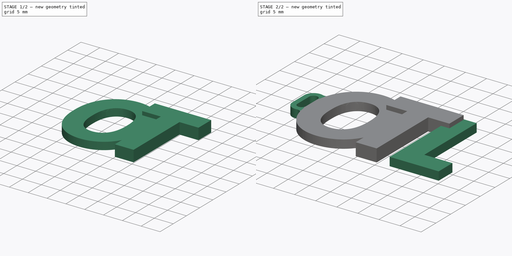
[diagram: build sequence overview — one tinted view per stage of 2, left to right]
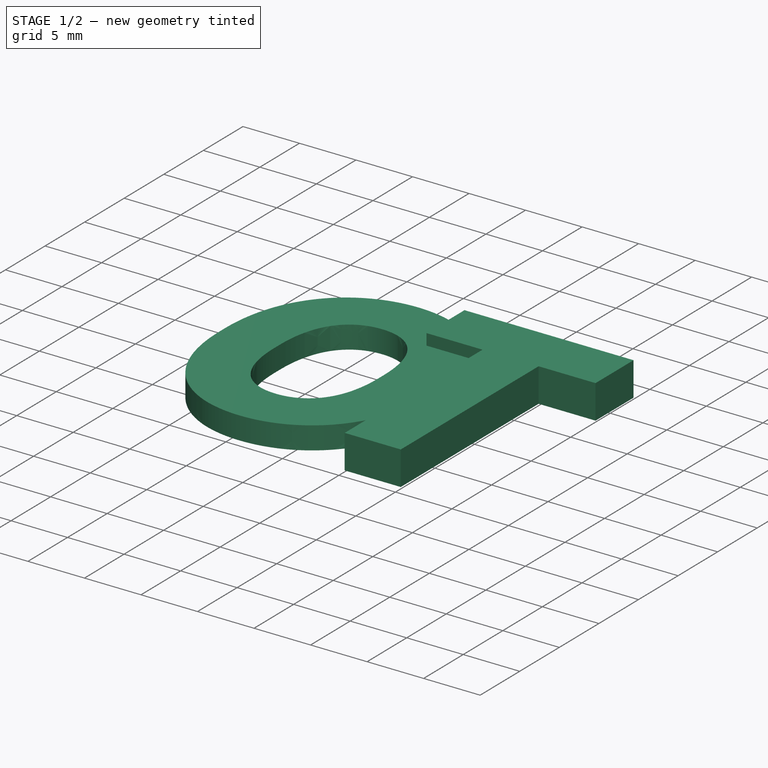
[diagram: stage 1 of 2 — iso view after this stage's code; geometry added in this stage tinted green]
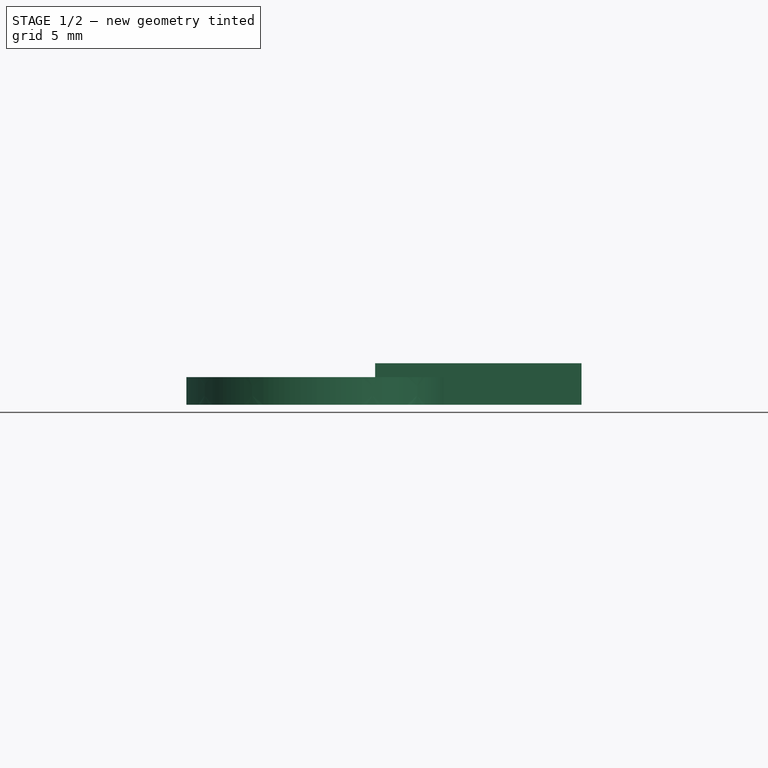
[diagram: stage 1 of 2 — front view after this stage's code; geometry added in this stage tinted green]
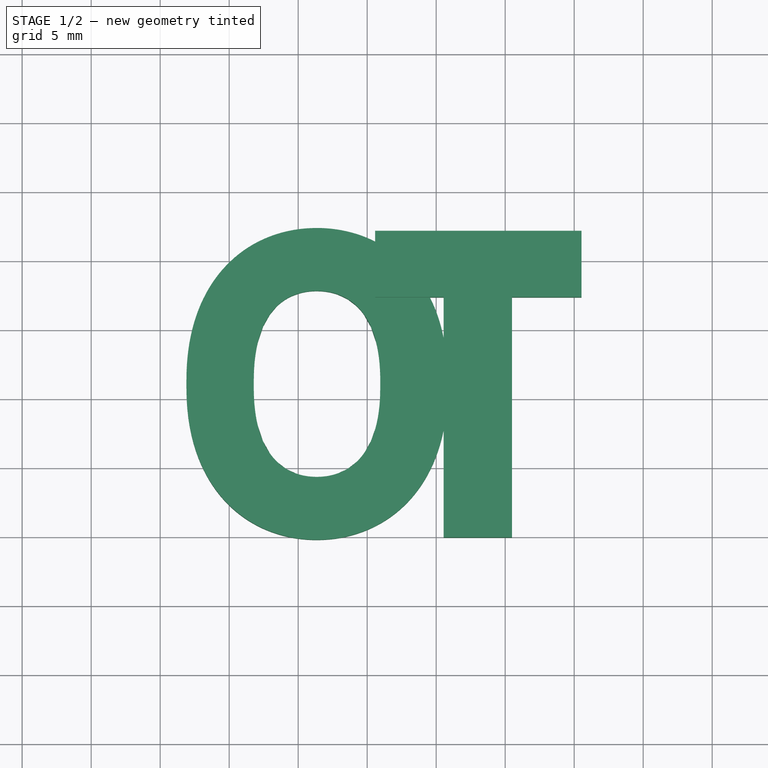
[diagram: stage 1 of 2 — top view after this stage's code; geometry added in this stage tinted green]
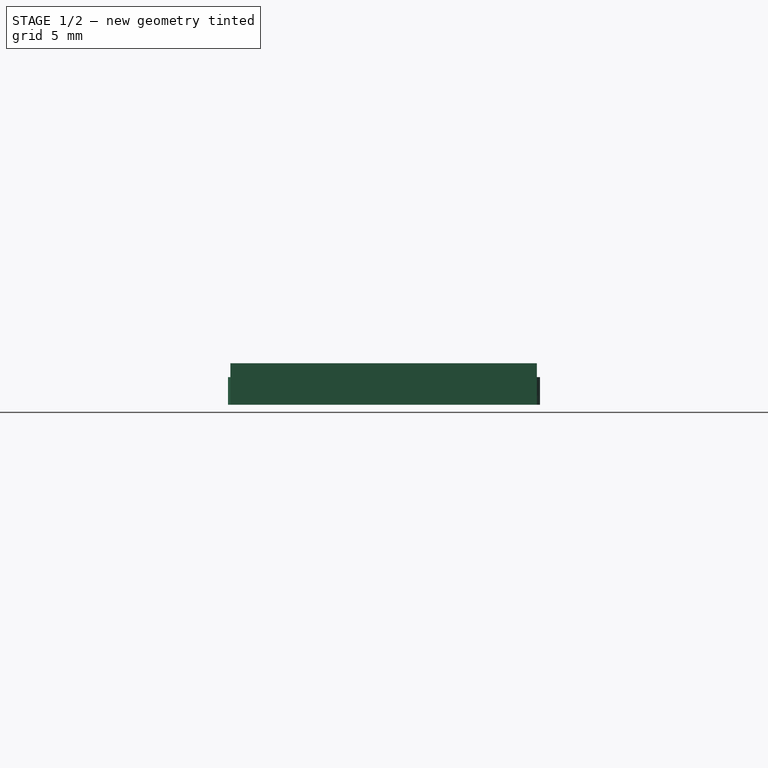
[diagram: stage 1 of 2 — right view after this stage's code; geometry added in this stage tinted green]
FCSTD DOCUMENT  (FreeCAD 0.21R33771 (Git))
Label: OTL
License: All rights reserved
LicenseURL: http://en.wikipedia.org/wiki/All_rights_reserved
objects: Sketcher::SketchObject×6, PartDesign::Pad×4, Part::Part2DObjectPython×1, PartDesign::Body×1
note: 16 computed .brp shape members not serialized (recipe doc carries the construction recipe); baked Part::Feature solids carry a one-line shape summary decoded from their .brp

FEATURE [Sketcher::SketchObject] Sketch
  FullyConstrained = false
  MapMode = 5
  Support = -> [XY_Plane]
  sketch-geometry (4):
    g0: LineSegment StartX=0 StartY=0 StartZ=0 EndX=45.6363 EndY=0 EndZ=0
    g1: LineSegment StartX=45.6363 StartY=0 StartZ=0 EndX=45.6363 EndY=22.6286 EndZ=0
    g2: LineSegment StartX=45.6363 StartY=22.6286 StartZ=0 EndX=0 EndY=22.6286 EndZ=0
    g3: LineSegment StartX=0 StartY=22.6286 StartZ=0 EndX=0 EndY=0 EndZ=0
  constraints (9):
    c: Coincident(g0,g1)
    c: Coincident(g1,g2)
    c: Coincident(g2,g3)
    c: Coincident(g3,g0)
    c: Horizontal(g0)
    c: Horizontal(g2)
    c: Vertical(g1)
    c: Vertical(g3)
    c: Coincident(g0,g-1)
FEATURE [Part::Part2DObjectPython] ShapeString  # Draft 2D object (typed FeaturePython)
  FontFile = <userpath>/Downloads/affogato/AffogatoBold.otf
  MakeFace = true
  Size = 12
  String = OTL
  Tracking = 0
FEATURE [Sketcher::SketchObject] Sketch001  label="o"
  FullyConstrained = false
  sketch-geometry (12):
    g0: BSplineCurve PolesCount=4 KnotsCount=2 Degree=3 IsPeriodic=0
    g1: LineSegment StartX=20.8261 StartY=10.783 StartZ=0 EndX=20.8261 EndY=11.417 EndZ=0
    g2: BSplineCurve PolesCount=4 KnotsCount=2 Degree=3 IsPeriodic=0
    g3: BSplineCurve PolesCount=4 KnotsCount=2 Degree=3 IsPeriodic=0
    g4: LineSegment StartX=1.90341 StartY=11.417 StartZ=0 EndX=1.90341 EndY=10.783 EndZ=0
    g5: BSplineCurve PolesCount=4 KnotsCount=2 Degree=3 IsPeriodic=0
    g6: BSplineCurve PolesCount=4 KnotsCount=2 Degree=3 IsPeriodic=0
    g7: LineSegment StartX=6.78295 StartY=10.783 StartZ=0 EndX=6.78295 EndY=11.417 EndZ=0
    g8: BSplineCurve PolesCount=4 KnotsCount=2 Degree=3 IsPeriodic=0
    g9: BSplineCurve PolesCount=4 KnotsCount=2 Degree=3 IsPeriodic=0
    g10: LineSegment StartX=15.9466 StartY=11.417 StartZ=0 EndX=15.9466 EndY=10.783 EndZ=0
    g11: BSplineCurve PolesCount=4 KnotsCount=2 Degree=3 IsPeriodic=0
  constraints (16):
    c: Coincident(g0,g1)
    c: Vertical(g1)
    c: Coincident(g1,g2)
    c: Coincident(g2,g3)
    c: Coincident(g3,g4)
    c: Vertical(g4)
    c: Coincident(g4,g5)
    c: Coincident(g5,g0)
    c: Coincident(g6,g7)
    c: Vertical(g7)
    c: Coincident(g7,g8)
    c: Coincident(g8,g9)
    c: Coincident(g9,g10)
    c: Vertical(g10)
    c: Coincident(g10,g11)
    c: Coincident(g11,g6)
FEATURE [Sketcher::SketchObject] Sketch002
  ExternalGeometry = -> [Sketch001]
  FullyConstrained = true
  MapMode = 2
  Support = -> [Sketch001]
FEATURE [Sketcher::SketchObject] Sketch003  label="t"
  FullyConstrained = false
  Placement = pos=(-7.7,0,0) rot=(0,0,1;0rad)
  sketch-geometry (8):
    g0: LineSegment StartX=38.2341 StartY=22.1818 StartZ=0 EndX=23.2784 EndY=22.1818 EndZ=0
    g1: LineSegment StartX=23.2784 StartY=22.1818 StartZ=0 EndX=23.2784 EndY=17.3818 EndZ=0
    g2: LineSegment StartX=23.2784 StartY=17.3818 StartZ=0 EndX=28.2375 EndY=17.3818 EndZ=0
    g3: LineSegment StartX=28.2375 StartY=17.3818 StartZ=0 EndX=28.2375 EndY=-0.0340909 EndZ=0
    g4: LineSegment StartX=28.2375 StartY=-0.0340909 StartZ=0 EndX=33.1966 EndY=-0.0340909 EndZ=0
    g5: LineSegment StartX=33.1966 StartY=-0.0340909 StartZ=0 EndX=33.1966 EndY=17.3818 EndZ=0
    g6: LineSegment StartX=33.1966 StartY=17.3818 StartZ=0 EndX=38.2341 EndY=17.3818 EndZ=0
    g7: LineSegment StartX=38.2341 StartY=17.3818 StartZ=0 EndX=38.2341 EndY=22.1818 EndZ=0
  constraints (16):
    c: Horizontal(g0)
    c: Coincident(g0,g1)
    c: Vertical(g1)
    c: Coincident(g1,g2)
    c: Horizontal(g2)
    c: Coincident(g2,g3)
    c: Vertical(g3)
    c: Coincident(g3,g4)
    c: Horizontal(g4)
    c: Coincident(g4,g5)
    c: Vertical(g5)
    c: Coincident(g5,g6)
    c: Horizontal(g6)
    c: Coincident(g6,g7)
    c: Vertical(g7)
    c: Coincident(g7,g0)
FEATURE [Sketcher::SketchObject] Sketch004  label="l"
  FullyConstrained = false
  Placement = pos=(-13,0,0) rot=(0,0,1;0rad)
  sketch-geometry (6):
    g0: LineSegment StartX=46.4989 StartY=4.64091 StartZ=0 EndX=46.4989 EndY=22.3727 EndZ=0
    g1: LineSegment StartX=46.4989 StartY=22.3727 StartZ=0 EndX=41.5398 EndY=22.3727 EndZ=0
    g2: LineSegment StartX=41.5398 StartY=22.3727 StartZ=0 EndX=41.5398 EndY=0 EndZ=0
    g3: LineSegment StartX=41.5398 StartY=0 StartZ=0 EndX=53.1636 EndY=0 EndZ=0
    g4: LineSegment StartX=53.1636 StartY=0 StartZ=0 EndX=53.1636 EndY=4.64091 EndZ=0
    g5: LineSegment StartX=53.1636 StartY=4.64091 StartZ=0 EndX=46.4989 EndY=4.64091 EndZ=0
  constraints (12):
    c: Vertical(g0)
    c: Coincident(g0,g1)
    c: Coincident(g1,g2)
    c: Vertical(g2)
    c: Coincident(g2,g3)
    c: Horizontal(g3)
    c: Coincident(g3,g4)
    c: Vertical(g4)
    c: Coincident(g4,g5)
    c: Horizontal(g5)
    c: Coincident(g5,g0)
    c: Horizontal(g1)
FEATURE [PartDesign::Pad] Pad
  Direction = (0,0,1)
  Length = 2
  Length2 = 10
  Profile = -> Sketch001
  ReferenceAxis = -> Sketch001 [N_Axis]
  Type = 0
FEATURE [PartDesign::Pad] Pad001
  BaseFeature = -> Pad
  Direction = (0,0,1)
  Length = 3
  Length2 = 10
  Profile = -> Sketch003
  ReferenceAxis = -> Sketch003 [N_Axis]
  Type = 0
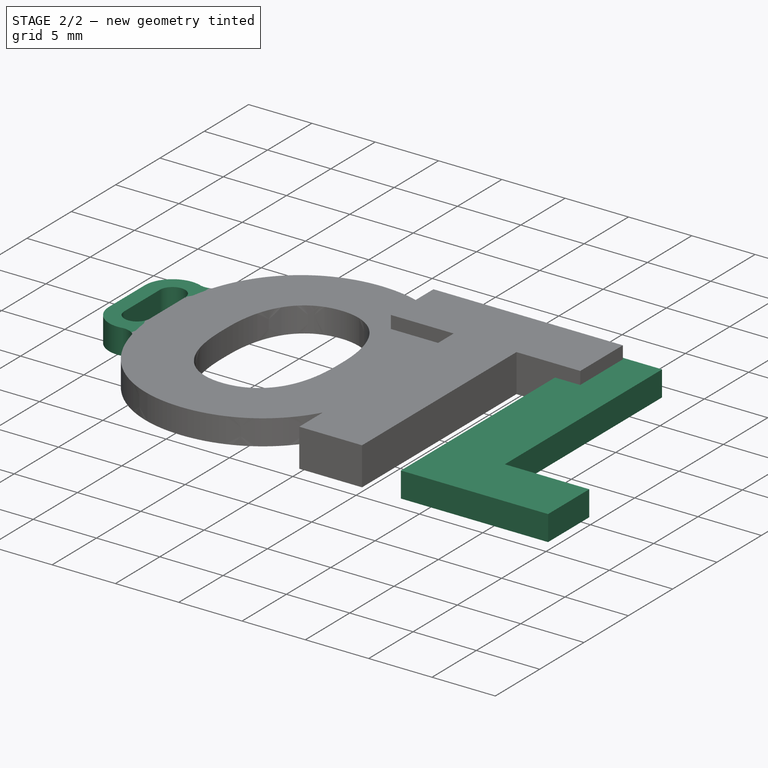
[diagram: stage 2 of 2 — iso view after this stage's code; geometry added in this stage tinted green]
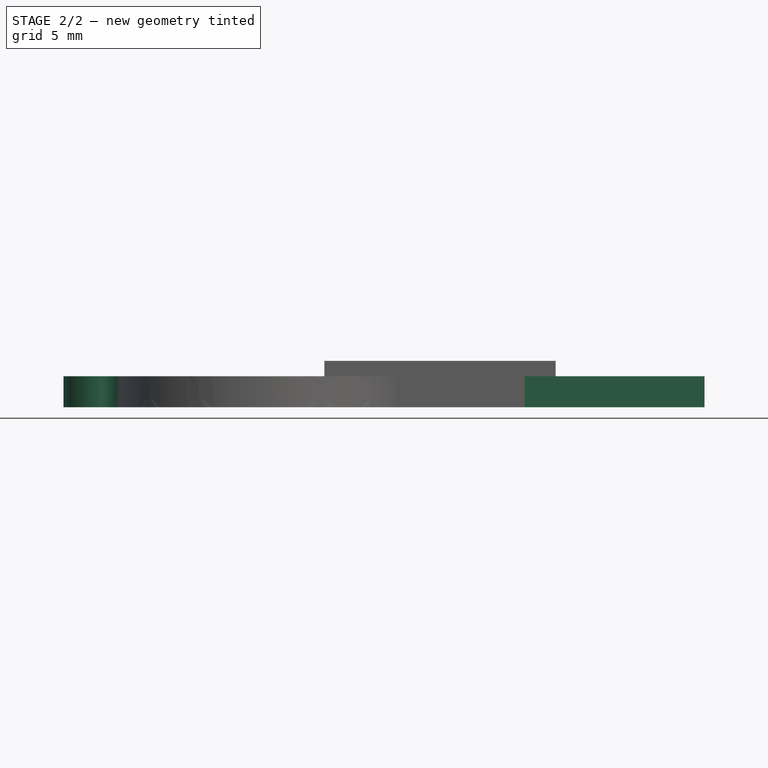
[diagram: stage 2 of 2 — front view after this stage's code; geometry added in this stage tinted green]
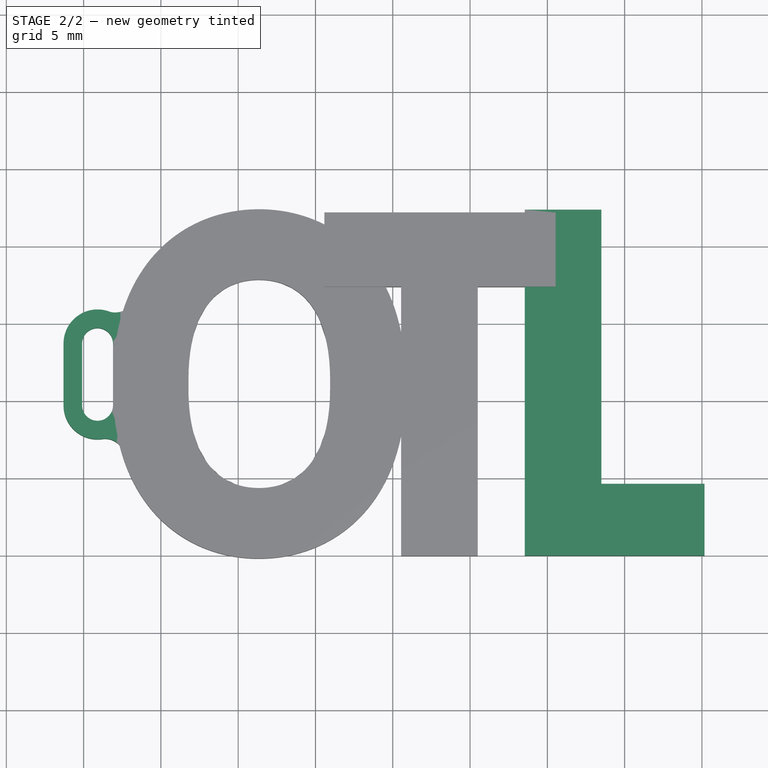
[diagram: stage 2 of 2 — top view after this stage's code; geometry added in this stage tinted green]
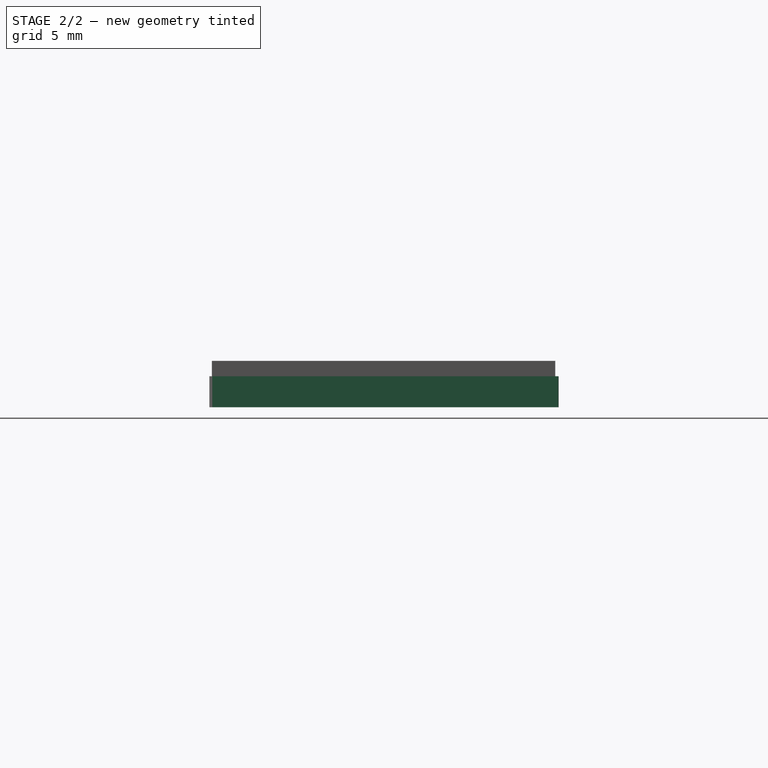
[diagram: stage 2 of 2 — right view after this stage's code; geometry added in this stage tinted green]
FEATURE [PartDesign::Pad] Pad002
  BaseFeature = -> Pad001
  Direction = (0,0,1)
  Length = 2
  Length2 = 10
  Profile = -> Sketch004
  ReferenceAxis = -> Sketch004 [N_Axis]
  Type = 0
FEATURE [Sketcher::SketchObject] Sketch005
  AttachmentOffset = pos=(0.5,0,0) rot=(0,0,1;0rad)
  ExternalGeometry = -> [Sketch001]
  FullyConstrained = false
  MapMode = 5
  Placement = pos=(0.5,0,0) rot=(0,0,1;0rad)
  Support = -> [XY_Plane]
  sketch-geometry (12):
    g0: ArcOfCircle CenterX=0.402532 CenterY=9.71585 CenterZ=0 NormalX=0 NormalY=0 NormalZ=1 AngleXU=0 Radius=2.2 StartAngle=3.14159 EndAngle=4.82607
    g1: LineSegment StartX=-1.79747 StartY=13.7158 StartZ=0 EndX=-1.79747 EndY=9.71585 EndZ=0
    g2: LineSegment StartX=2.60253 StartY=9.71585 StartZ=0 EndX=2.60253 EndY=13.7158 EndZ=0
    g3: ArcOfCircle CenterX=0.402532 CenterY=13.7158 CenterZ=0 NormalX=0 NormalY=0 NormalZ=1 AngleXU=0 Radius=1 StartAngle=4e-16 EndAngle=3.14159
    g4: ArcOfCircle CenterX=0.402532 CenterY=9.71585 CenterZ=0 NormalX=0 NormalY=0 NormalZ=1 AngleXU=0 Radius=1 StartAngle=3.14159 EndAngle=6.28319
    g5: LineSegment StartX=-0.597468 StartY=13.7158 StartZ=0 EndX=-0.597468 EndY=9.71585 EndZ=0
    g6: LineSegment StartX=1.40253 StartY=9.71585 StartZ=0 EndX=1.40253 EndY=13.7158 EndZ=0
    g7: ArcOfCircle CenterX=1.5412 CenterY=17.0125 CenterZ=0 NormalX=0 NormalY=0 NormalZ=1 AngleXU=0 Radius=1.29264 StartAngle=4.44859 EndAngle=5.11186
    g8: ArcOfCircle CenterX=0.402532 CenterY=13.7158 CenterZ=0 NormalX=0 NormalY=0 NormalZ=1 AngleXU=0 Radius=2.2 StartAngle=1.19784 EndAngle=3.14159
    g9: LineSegment StartX=2.04395 StartY=15.8217 StartZ=0 EndX=2.60253 EndY=13.7158 EndZ=0
    g10: ArcOfCircle CenterX=0.891199 CenterY=6.26546 CenterZ=0 NormalX=0 NormalY=0 NormalZ=1 AngleXU=0 Radius=1.287 StartAngle=0.760487 EndAngle=1.75767
    g11: LineSegment StartX=1.82363 StartY=7.15255 StartZ=0 EndX=2.60253 EndY=9.71585 EndZ=0
  constraints (19):
    c: Coincident(g8,g1) = -1.5708
    c: Tangent(g1,g0) = -1.5708
    c: Vertical(g1)
    c: Tangent(g3,g5) = -1.5708
    c: Tangent(g5,g4) = -1.5708
    c: Tangent(g4,g6) = -1.5708
    c: Tangent(g6,g3) = -1.5708
    c: Equal(g3,g4)
    c: Coincident(g4,g0)
    c: Distance(g8,g2) = 4.4
    c: Distance(g3,g6) = 2
    c: PointOnObject(g7,g-3)
    c: Coincident(g9,g7)
    c: Coincident(g9,g2)
    c: PointOnObject(g10,g-4)
    c: Coincident(g11,g10)
    c: Coincident(g11,g2)
    c: Coincident(g0,g10)
    c: Coincident(g7,g8)
FEATURE [PartDesign::Pad] Pad003
  BaseFeature = -> Pad002
  Direction = (0,0,1)
  Length = 2
  Length2 = 10
  Profile = -> Sketch005
  ReferenceAxis = -> Sketch005 [N_Axis]
  Type = 0
FEATURE [PartDesign::Body] Body
  Group = -> [Sketch,Sketch001,Sketch003,Sketch004,Pad,Pad001,Pad002,Sketch005,Pad003]
  Origin = -> Origin
  Tip = -> Pad003
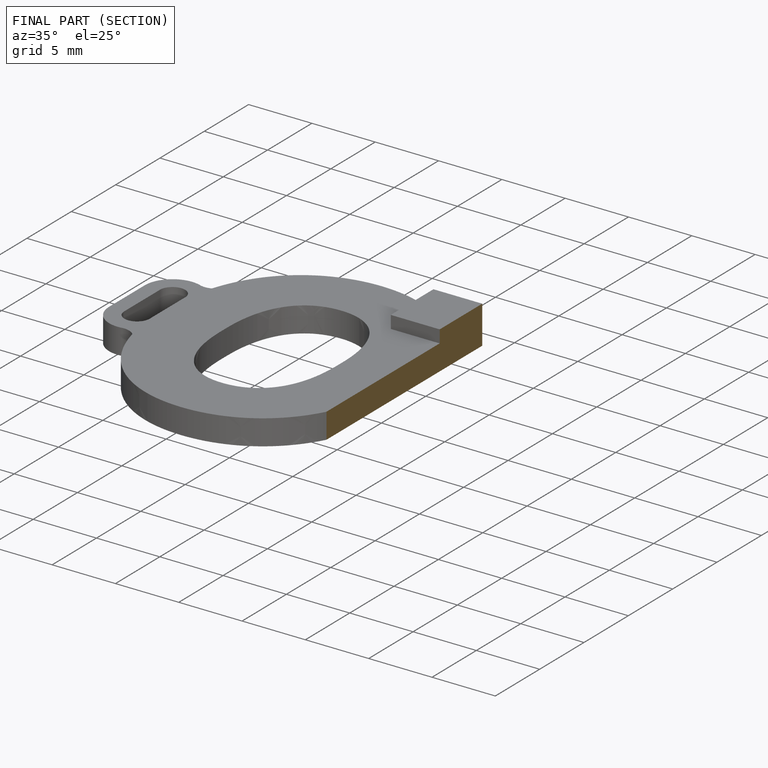
[diagram: finished part — half-section view (interior)]
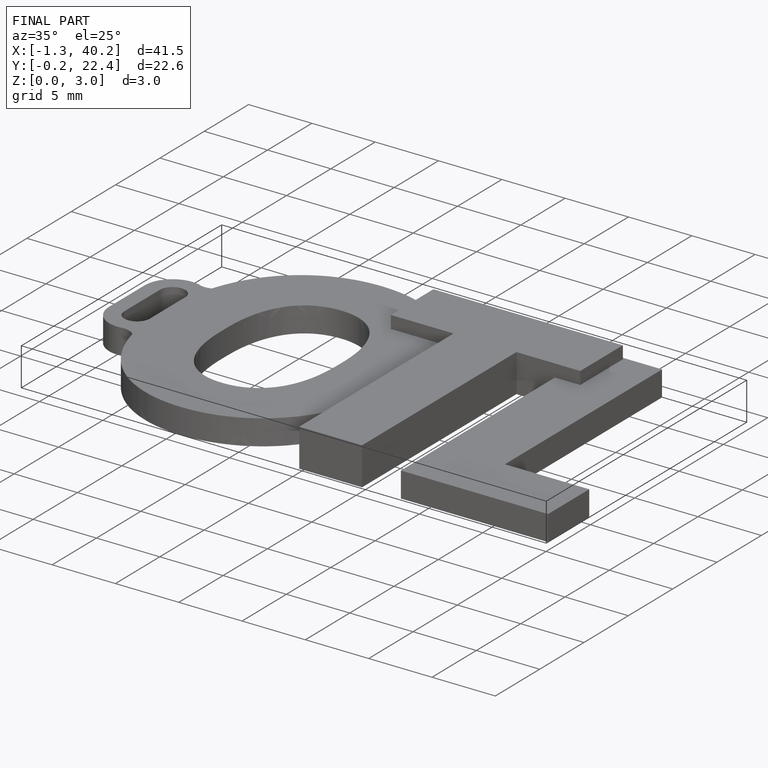
[diagram: finished part — iso view with bounding-box wireframe]
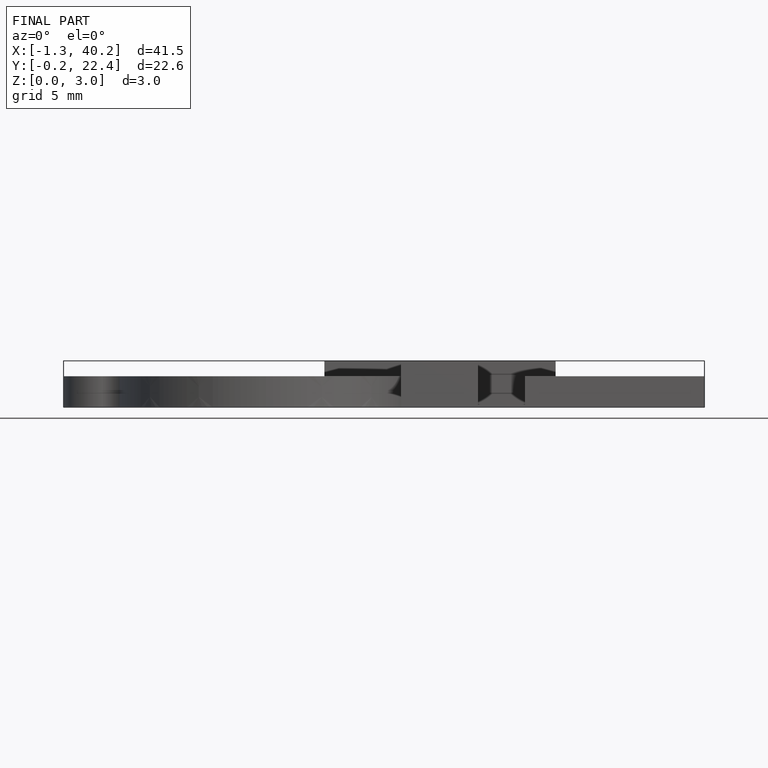
[diagram: finished part — front view with bounding-box wireframe]
